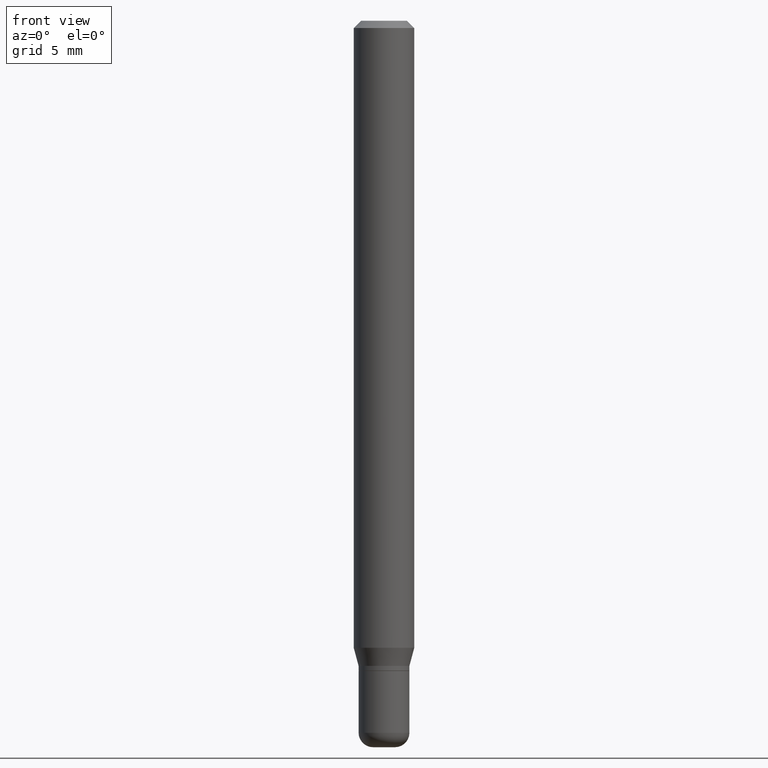
[diagram: clean part render]
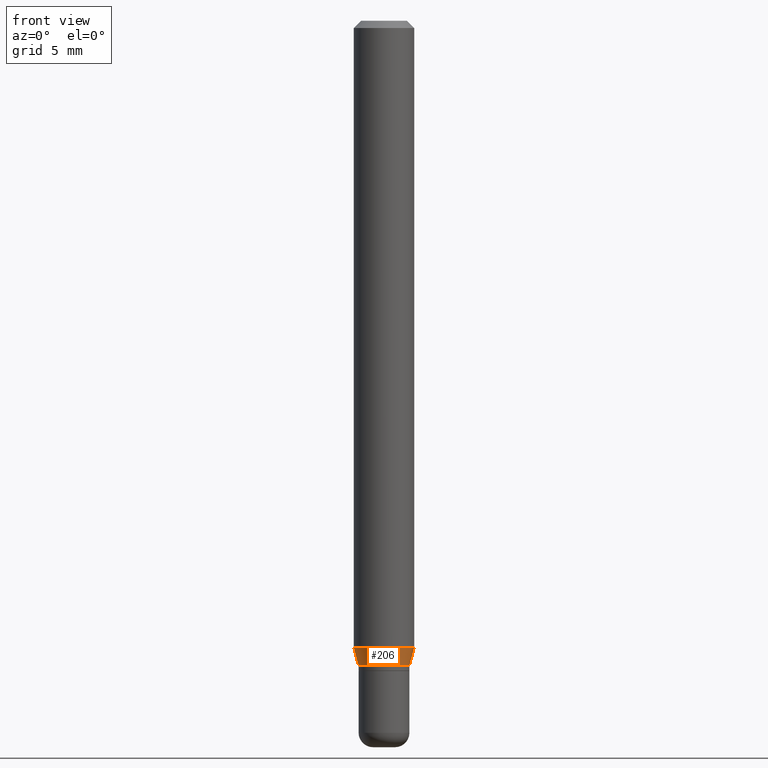
[diagram: same view with one face highlighted and labeled with its STEP entity id]
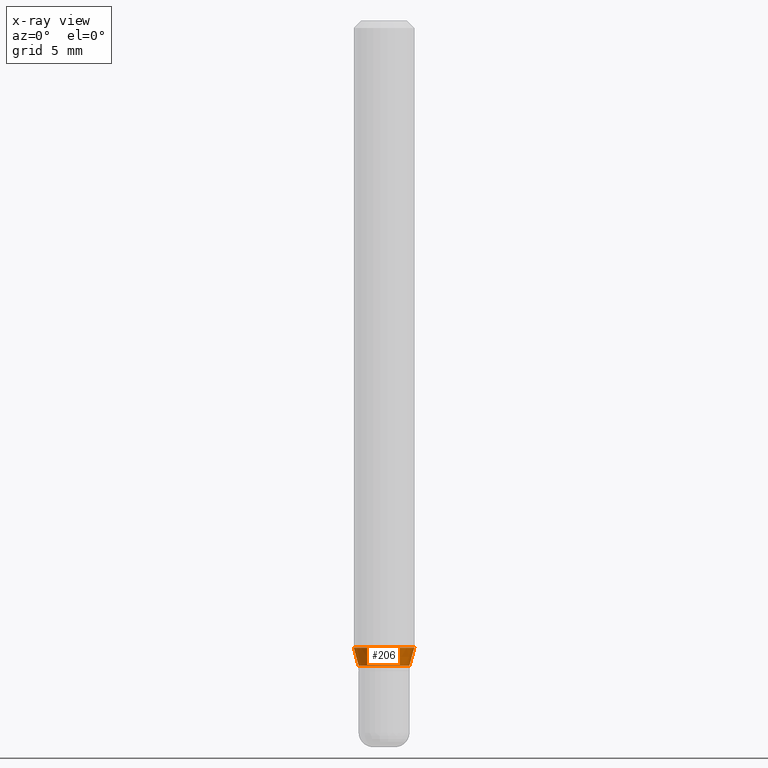
[diagram: x-ray of the same camera — body ghosted, the highlighted face saturated]
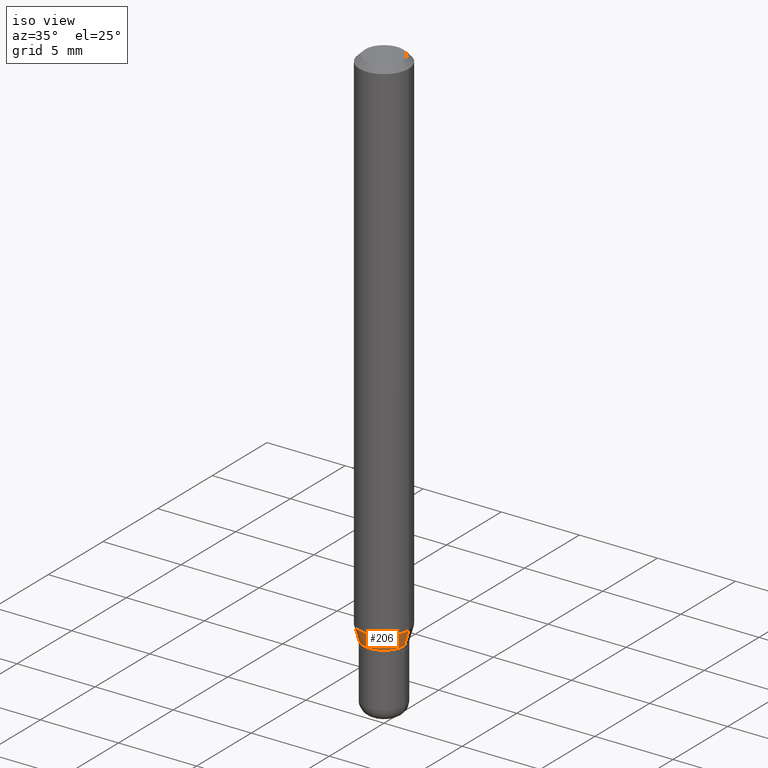
[diagram: same view with one face highlighted and labeled with its STEP entity id]
A machine part, front view. The second image highlights one B-rep face of the part: STEP entity #206.
The next image is the same camera in x-ray: the body ghosted, the highlighted face saturated — about 0% of this face is hidden behind the body in this view.
A second angle (iso view) of the same face is appended — the face is thin or edge-on in the first view.
In plain terms, the highlighted conical surface has half-angle 15 deg.
Its self-contained STEP definition (entity closure, byte-faithful):
#60 = CARTESIAN_POINT ( 'NONE',  ( 3.257364449838602633E-29, -4.650653143339071678E-15, -1.332000000000000517 ) ) ;
#67 = VERTEX_POINT ( 'NONE', #163 ) ;
#73 = AXIS2_PLACEMENT_3D ( 'NONE', #60, #465, #506 ) ;
#82 = DIRECTION ( 'NONE',  ( 1.000000000000000000, -6.982962677686258033E-15, 0.000000000000000000 ) ) ;
#106 = ORIENTED_EDGE ( 'NONE', *, *, #160, .F. ) ;
#128 = DIRECTION ( 'NONE',  ( -0.2588190451025214611, 5.211531920934550253E-15, 0.9659258262890679791 ) ) ;
#139 = CIRCLE ( 'NONE', #300, 0.05250000000000007438 ) ;
#147 = DIRECTION ( 'NONE',  ( 1.000000000000000000, -6.982962677686262766E-15, 0.000000000000000000 ) ) ;
#150 = VECTOR ( 'NONE', #128, 39.37007874015748143 ) ;
#151 = CARTESIAN_POINT ( 'NONE',  ( -0.05250000000000007438, -4.176939141525808200E-15, -1.332000000000000517 ) ) ;
#160 = EDGE_CURVE ( 'NONE', #253, #229, #377, .T. ) ;
#163 = CARTESIAN_POINT ( 'NONE',  ( 0.06250000000000000000, -4.956784453192051541E-15, -1.294679491924312087 ) ) ;
#191 = VECTOR ( 'NONE', #408, 39.37007874015748143 ) ;
#197 = VERTEX_POINT ( 'NONE', #232 ) ;
#206 = ADVANCED_FACE ( 'NONE', ( #344 ), #486, .T. ) ;
#221 = AXIS2_PLACEMENT_3D ( 'NONE', #223, #508, #147 ) ;
#223 = CARTESIAN_POINT ( 'NONE',  ( 3.166098311508526589E-29, -4.520349285836659871E-15, -1.294679491924312087 ) ) ;
#229 = VERTEX_POINT ( 'NONE', #419 ) ;
#232 = CARTESIAN_POINT ( 'NONE',  ( 0.05250000000000007438, -5.017258683917600838E-15, -1.332000000000000517 ) ) ;
#243 = LINE ( 'NONE', #402, #191 ) ;
#246 = EDGE_CURVE ( 'NONE', #229, #67, #247, .T. ) ;
#247 = CIRCLE ( 'NONE', #221, 0.06250000000000000000 ) ;
#253 = VERTEX_POINT ( 'NONE', #151 ) ;
#270 = EDGE_LOOP ( 'NONE', ( #106, #352, #471, #293 ) ) ;
#283 = DIRECTION ( 'NONE',  ( -2.445468806185136597E-29, 3.491481338843145583E-15, 1.000000000000000000 ) ) ;
#293 = ORIENTED_EDGE ( 'NONE', *, *, #246, .F. ) ;
#300 = AXIS2_PLACEMENT_3D ( 'NONE', #442, #283, #82 ) ;
#344 = FACE_OUTER_BOUND ( 'NONE', #270, .T. ) ;
#352 = ORIENTED_EDGE ( 'NONE', *, *, #363, .T. ) ;
#363 = EDGE_CURVE ( 'NONE', #253, #197, #139, .T. ) ;
#377 = LINE ( 'NONE', #491, #150 ) ;
#402 = CARTESIAN_POINT ( 'NONE',  ( 0.05250000000000007438, -5.017258683917600838E-15, -1.332000000000000517 ) ) ;
#408 = DIRECTION ( 'NONE',  ( 0.2588190451025214611, 1.565188264969620982E-15, 0.9659258262890679791 ) ) ;
#419 = CARTESIAN_POINT ( 'NONE',  ( -0.06250000000000000000, -4.076260075986598044E-15, -1.294679491924312087 ) ) ;
#424 = EDGE_CURVE ( 'NONE', #197, #67, #243, .T. ) ;
#442 = CARTESIAN_POINT ( 'NONE',  ( 3.257364449838602633E-29, -4.650653143339071678E-15, -1.332000000000000517 ) ) ;
#465 = DIRECTION ( 'NONE',  ( -2.445468806185136597E-29, 3.491481338843145583E-15, 1.000000000000000000 ) ) ;
#471 = ORIENTED_EDGE ( 'NONE', *, *, #424, .T. ) ;
#486 = CONICAL_SURFACE ( 'NONE', #73, 0.05250000000000007438, 0.2617993877991501850 ) ;
#491 = CARTESIAN_POINT ( 'NONE',  ( -0.05250000000000007438, -4.277618207065018355E-15, -1.332000000000000517 ) ) ;
#506 = DIRECTION ( 'NONE',  ( 1.000000000000000000, -6.982962677686258033E-15, 0.000000000000000000 ) ) ;
#508 = DIRECTION ( 'NONE',  ( -2.445468806185136597E-29, 3.491481338843145583E-15, 1.000000000000000000 ) ) ;